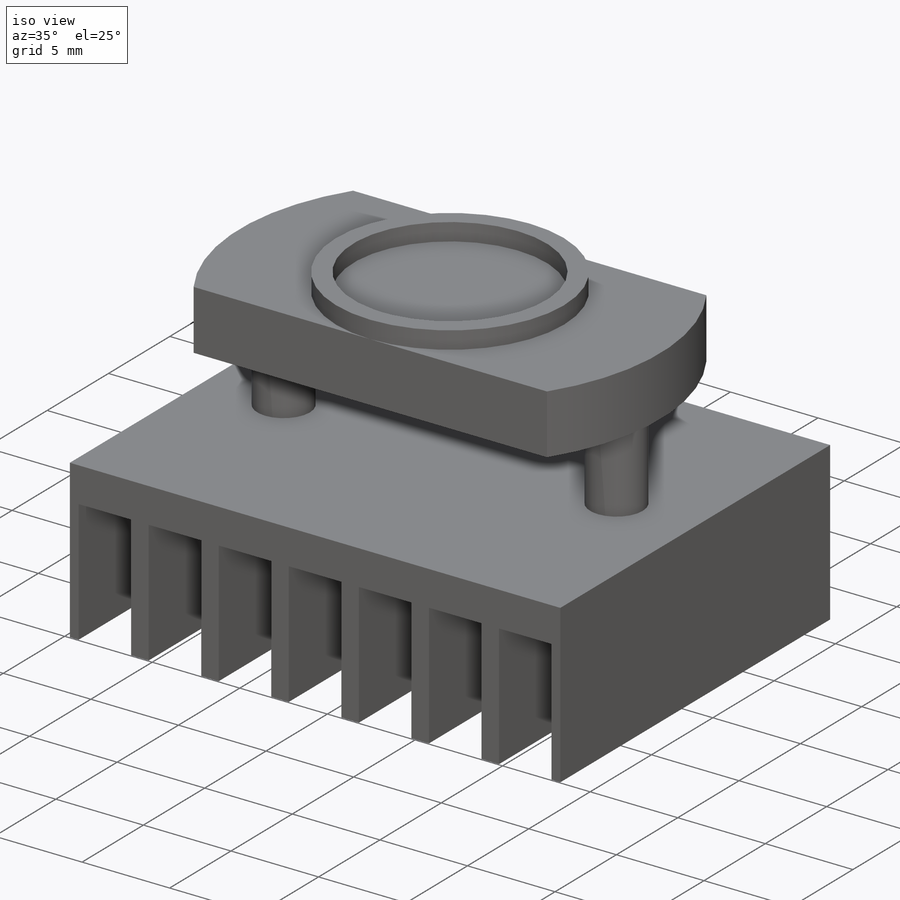
[diagram: iso view]
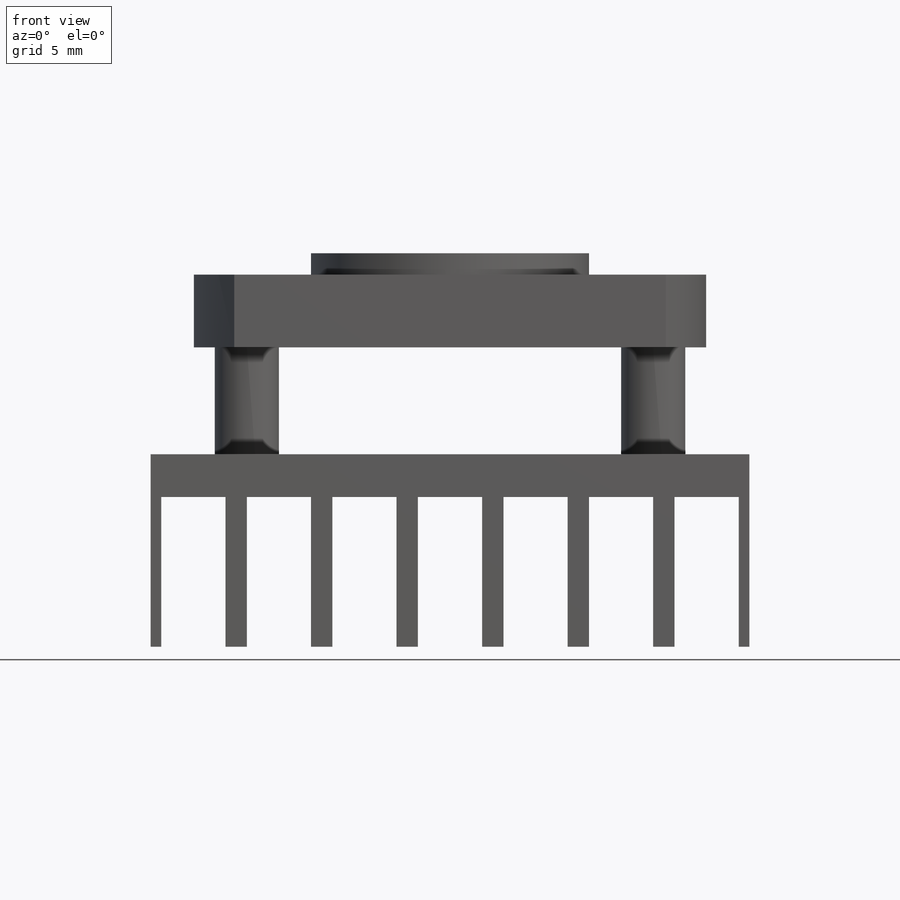
[diagram: front view]
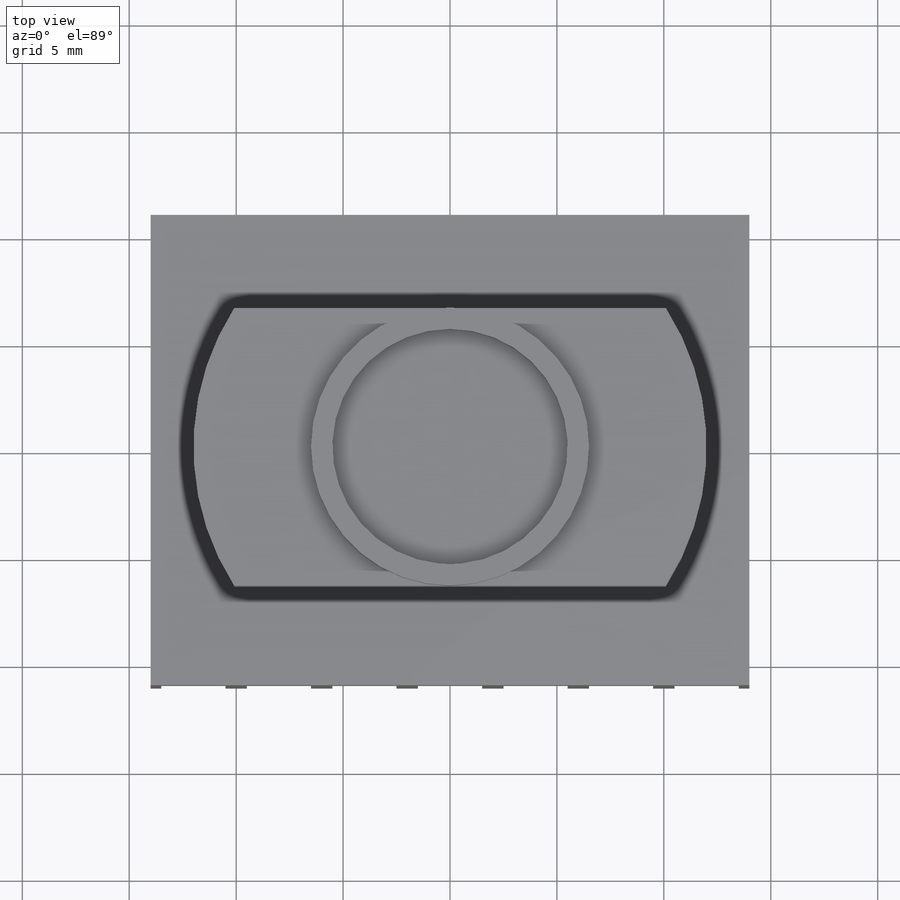
[diagram: top view]
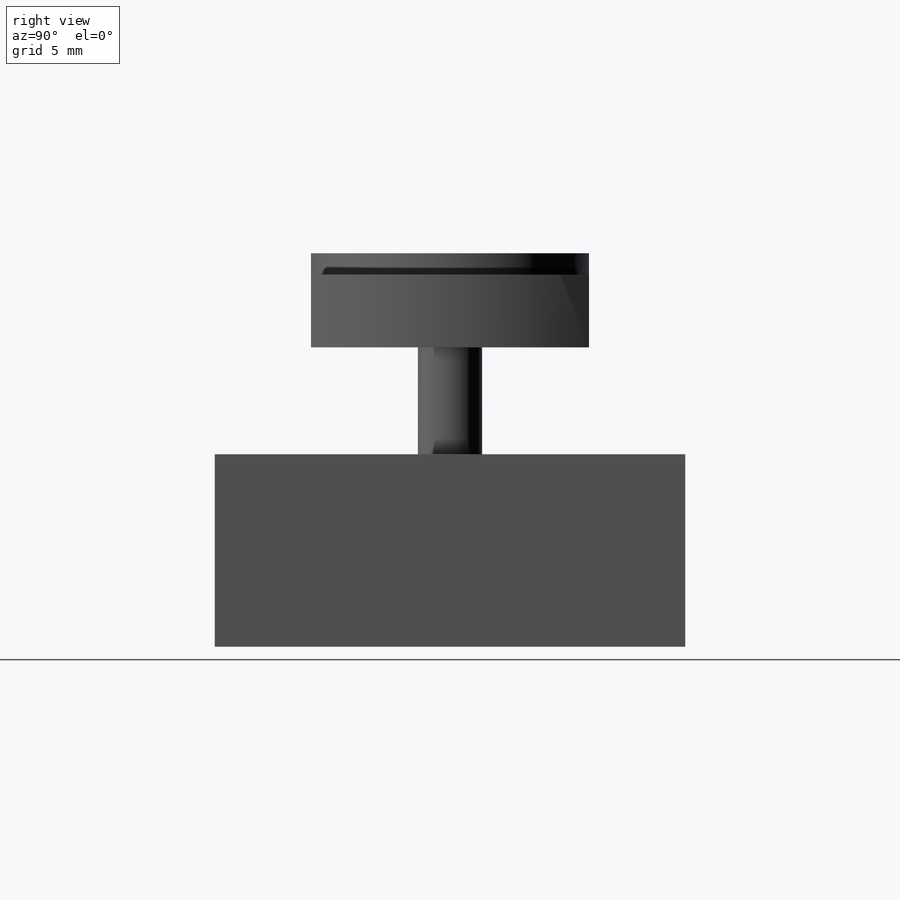
[diagram: right view]
SOLIDWORKS PART (.sldprt)
format: sldprt  version: not decoded by parser v0  size: 254,464 bytes
history: native  units: mm
features: sketch x8, extrude x5, plane x3, cut_extrude x3, material x1, pattern_linear x1 (+8 scaffold rows collapsed)
feature tree (29):
  scaffold x8  (default folders/planes/origin — collapsed)
  material  "Materiale <non specificato>"
  plane  "Piano frontale"
  plane  "Piano superiore"
  plane  "Piano destro"
  sketch  "Schizzo1"  dims[D1=22.0mm D2=28.0mm]
  extrude  "Estrusione-Estrusione1"  Depth=9mm
  sketch  "Schizzo2"  dims[D1=13.0mm D2=24.0mm]
  extrude  "Estrusione-Estrusione2"  Depth=8.4mm
  sketch  "Schizzo3"  dims[D1=11.0mm]
  extrude  "Estrusione-Estrusione3"  Depth=1mm
  sketch  "Schizzo5"
  cut_extrude  "Taglio-Estrusione1"  Depth=10mm
  sketch  "Schizzo6"
  cut_extrude  "Taglio-Estrusione2"  Depth=14mm
  sketch  "Schizzo7"  dims[D1=3.0mm D3=3.0mm D2=2.5mm D4=2.5mm]
  extrude  "Estrusione-Estrusione4"  Depth=5mm
  sketch  "Schizzo3D1"  dims[D1=28.0mm D2=22.0mm]
  extrude  "Estrusione-Estrusione5"  Depth=9mm
  sketch  "Schizzo3D2"  dims[D1=0.5mm D2=3.0mm]
  cut_extrude  "Taglio-Estrusione3"  Depth=7mm
  pattern_linear  "Ripetizione a L1"  Count1=7 Count2=1 Spacing1=4mm Spacing2=50mm
decode coverage: 15 of 17 modeling features carry decoded parameters
note: suppression state not decoded; provenance and decode notes live in map.json
